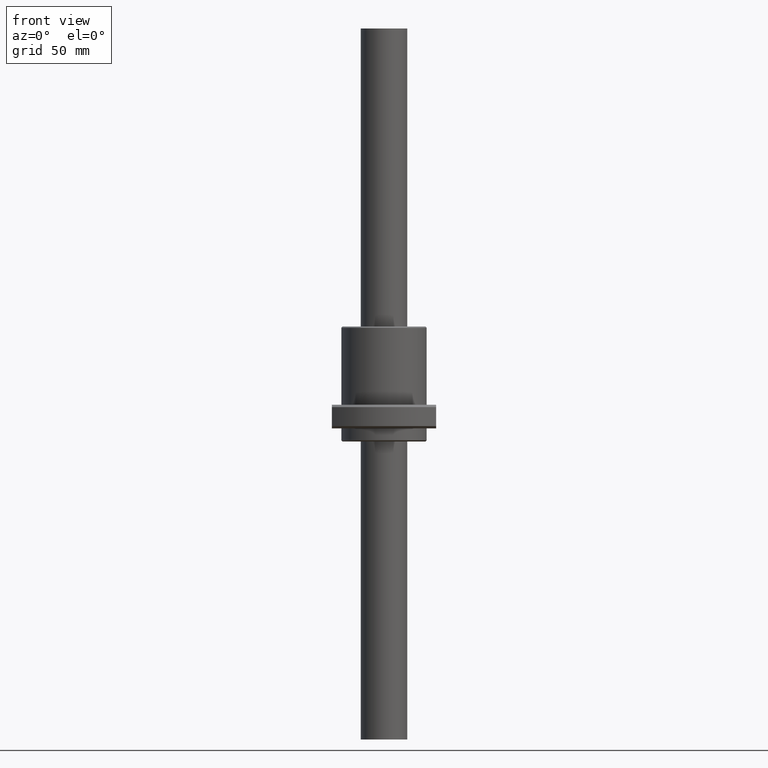
[diagram: clean part render]
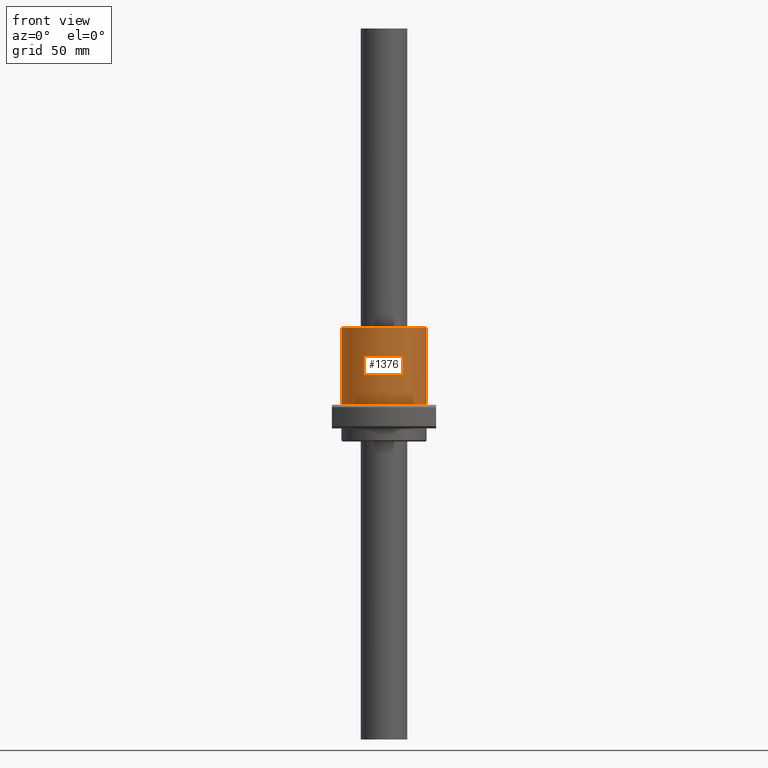
[diagram: same view with one face highlighted and labeled with its STEP entity id]
A machine part, front view. The second image highlights one B-rep face of the part: STEP entity #1376.
In plain terms, the highlighted cylindrical surface (partial cylindrical patch) has radius 18 mm, axis along (0, 0, -1).
Its self-contained STEP definition (entity closure, byte-faithful):
#68 = AXIS2_PLACEMENT_3D ( 'NONE', #832, #831, #821 ) ;
#115 = CIRCLE ( 'NONE', #666, 18.00000000000000400 ) ;
#143 = EDGE_CURVE ( 'NONE', #164, #344, #1001, .T. ) ;
#153 = EDGE_LOOP ( 'NONE', ( #1530, #175, #1423, #612 ) ) ;
#164 = VERTEX_POINT ( 'NONE', #678 ) ;
#173 = CARTESIAN_POINT ( 'NONE',  ( 18.00000000000000400, 0.0000000000000000000, -48.00000000000000000 ) ) ;
#175 = ORIENTED_EDGE ( 'NONE', *, *, #1713, .T. ) ;
#227 = DIRECTION ( 'NONE',  ( 0.0000000000000000000, -0.0000000000000000000, 1.000000000000000000 ) ) ;
#234 = EDGE_CURVE ( 'NONE', #344, #783, #115, .T. ) ;
#281 = FACE_OUTER_BOUND ( 'NONE', #153, .T. ) ;
#344 = VERTEX_POINT ( 'NONE', #1302 ) ;
#442 = CYLINDRICAL_SURFACE ( 'NONE', #68, 18.00000000000000400 ) ;
#466 = VERTEX_POINT ( 'NONE', #173 ) ;
#484 = VECTOR ( 'NONE', #1168, 1000.000000000000000 ) ;
#529 = DIRECTION ( 'NONE',  ( 1.000000000000000000, 0.0000000000000000000, 2.312964634635742300E-015 ) ) ;
#537 = DIRECTION ( 'NONE',  ( 0.0000000000000000000, 0.0000000000000000000, 1.000000000000000000 ) ) ;
#538 = CARTESIAN_POINT ( 'NONE',  ( 0.0000000000000000000, 0.0000000000000000000, -48.00000000000004300 ) ) ;
#612 = ORIENTED_EDGE ( 'NONE', *, *, #234, .F. ) ;
#631 = AXIS2_PLACEMENT_3D ( 'NONE', #538, #537, #529 ) ;
#666 = AXIS2_PLACEMENT_3D ( 'NONE', #1474, #227, #1658 ) ;
#678 = CARTESIAN_POINT ( 'NONE',  ( -18.00000000000000400, 2.204364238465235800E-015, -48.00000000000004300 ) ) ;
#783 = VERTEX_POINT ( 'NONE', #1491 ) ;
#821 = DIRECTION ( 'NONE',  ( 1.000000000000000000, 0.0000000000000000000, 0.0000000000000000000 ) ) ;
#831 = DIRECTION ( 'NONE',  ( 0.0000000000000000000, -0.0000000000000000000, 1.000000000000000000 ) ) ;
#832 = CARTESIAN_POINT ( 'NONE',  ( 0.0000000000000000000, 0.0000000000000000000, -48.00000000000000000 ) ) ;
#1001 = LINE ( 'NONE', #1199, #1089 ) ;
#1089 = VECTOR ( 'NONE', #1386, 1000.000000000000000 ) ;
#1092 = EDGE_CURVE ( 'NONE', #466, #783, #1178, .T. ) ;
#1164 = CIRCLE ( 'NONE', #631, 18.00000000000000400 ) ;
#1168 = DIRECTION ( 'NONE',  ( 0.0000000000000000000, -0.0000000000000000000, 1.000000000000000000 ) ) ;
#1170 = CARTESIAN_POINT ( 'NONE',  ( 18.00000000000000400, 0.0000000000000000000, -48.00000000000000000 ) ) ;
#1178 = LINE ( 'NONE', #1170, #484 ) ;
#1199 = CARTESIAN_POINT ( 'NONE',  ( -18.00000000000000400, 2.204364238465235800E-015, -48.00000000000000000 ) ) ;
#1302 = CARTESIAN_POINT ( 'NONE',  ( -18.00000000000000400, 2.204364238465235800E-015, -15.50000000000000000 ) ) ;
#1376 = ADVANCED_FACE ( 'NONE', ( #281 ), #442, .T. ) ;
#1386 = DIRECTION ( 'NONE',  ( 0.0000000000000000000, -0.0000000000000000000, 1.000000000000000000 ) ) ;
#1423 = ORIENTED_EDGE ( 'NONE', *, *, #1092, .T. ) ;
#1474 = CARTESIAN_POINT ( 'NONE',  ( 0.0000000000000000000, 0.0000000000000000000, -15.50000000000000000 ) ) ;
#1491 = CARTESIAN_POINT ( 'NONE',  ( 18.00000000000000400, 0.0000000000000000000, -15.50000000000000000 ) ) ;
#1530 = ORIENTED_EDGE ( 'NONE', *, *, #143, .F. ) ;
#1658 = DIRECTION ( 'NONE',  ( 1.000000000000000000, 0.0000000000000000000, 0.0000000000000000000 ) ) ;
#1713 = EDGE_CURVE ( 'NONE', #164, #466, #1164, .T. ) ;